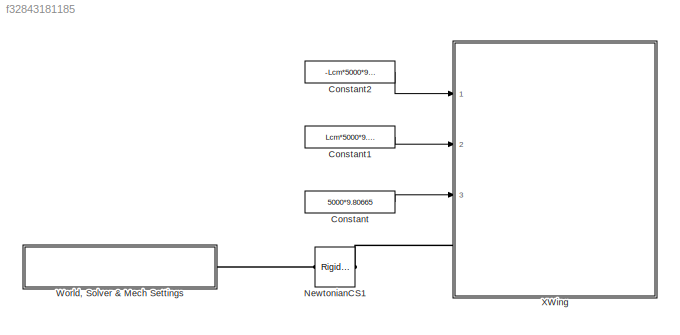
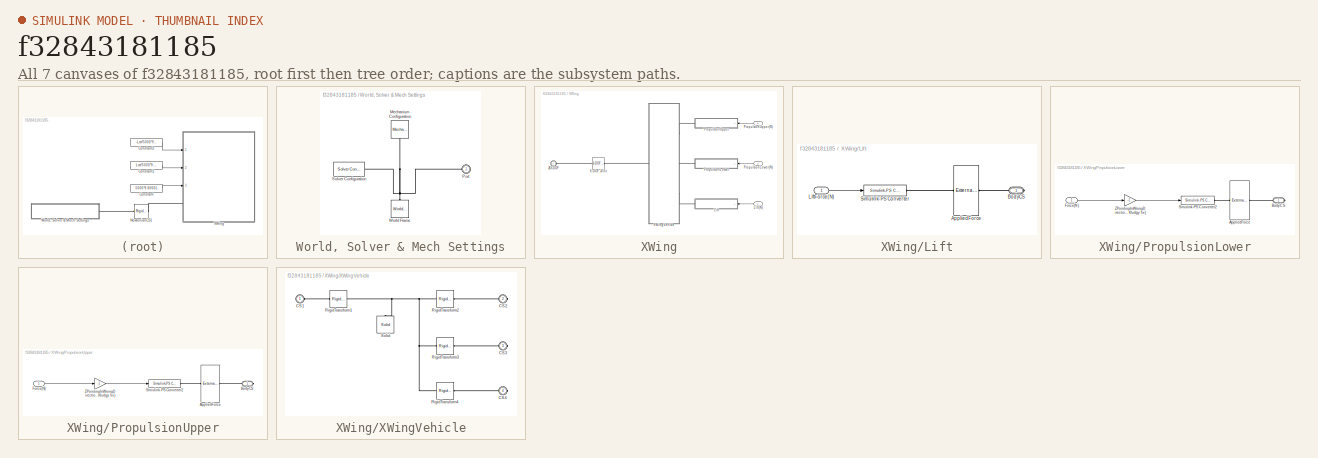
[diagram: thumbnail index - all 7 canvases of the model, root first then tree order]
MODEL slx_f32843181185
KIND model
CONFIG AbsTol = 1e-5
CONFIG EnableMultiTasking = off
CONFIG FixedStep = auto
CONFIG MaxStep = auto
CONFIG MinStep = auto
CONFIG PostLoadFcn = Lcm = 3.2;
CONFIG RelTol = 1e-5
CONFIG SampleTimeConstraint = Unconstrained
CONFIG Solver = VariableStepAuto
CONFIG SolverName = VariableStepAuto
CONFIG StartTime = 0.0
CONFIG StopTime = 10.0
BLOCK [Constant] Constant
  Value = 5000*9.80665
BLOCK [Constant] Constant1
  Value = Lcm*5000*9.80665
BLOCK [Constant] Constant2
  Value = -Lcm*5000*9.80665
BLOCK [Reference] NewtonianCS1  REF=sm_lib/Frames and
Transforms/Rigid
Transform
  Ports = [0, 0, 0, 0, 0, 1, 1]
  SourceBlock = sm_lib/Frames and\nTransforms/Rigid\nTransform
  SourceProductBaseCode = MS
  SourceProductName = Simscape Multibody
  SourceType = Rigid\nTransform
BLOCK [SubSystem] World, Solver & Mech Settings
  Ports = [0, 0, 0, 0, 0, 0, 1]
  RequestExecContextInheritance = off
BLOCK [Reference] World, Solver & Mech Settings/Mechanism Configuration  REF=sm_lib/Utilities/Mechanism
Configuration
  Ports = [0, 0, 0, 0, 0, 0, 1]
  SourceBlock = sm_lib/Utilities/Mechanism\nConfiguration
  SourceProductBaseCode = MS
  SourceProductName = Simscape Multibody
  SourceType = Mechanism\nConfiguration
BLOCK [PMIOPort] World, Solver & Mech Settings/Port
  Side = Right
BLOCK [Reference] World, Solver & Mech Settings/Solver Configuration  REF=nesl_utility/Solver
Configuration
  Ports = [0, 0, 0, 0, 0, 0, 1]
  SourceBlock = nesl_utility/Solver\nConfiguration
  SourceProductBaseCode = SS
  SourceProductName = Simscape
  SourceType = Solver\nConfiguration
BLOCK [Reference] World, Solver & Mech Settings/World Frame  REF=sm_lib/Frames and
Transforms/World Frame
  Ports = [0, 0, 0, 0, 0, 0, 1]
  SourceBlock = sm_lib/Frames and\nTransforms/World Frame
  SourceProductBaseCode = MS
  SourceProductName = Simscape Multibody
  SourceType = World Frame
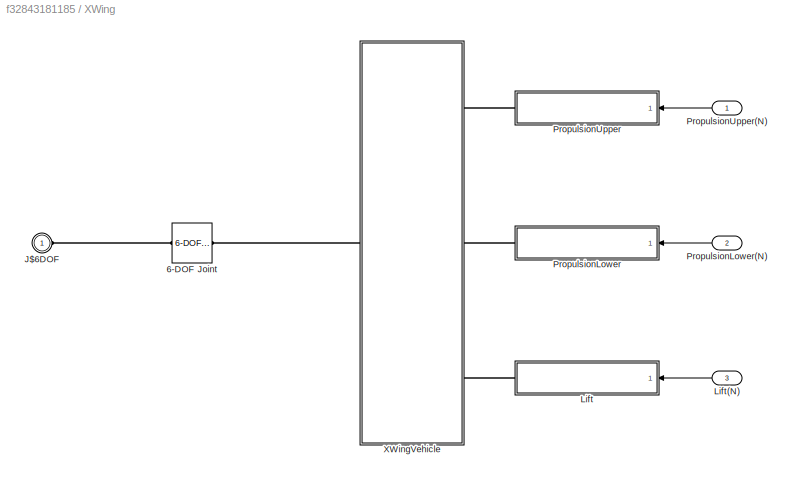
BLOCK [SubSystem] XWing
  Ports = [3, 0, 0, 0, 0, 1]
  RequestExecContextInheritance = off
  Tag = Force/Torque
BLOCK [Reference] XWing/6-DOF Joint  REF=sm_lib/Joints/6-DOF Joint
  Ports = [0, 0, 0, 0, 0, 1, 1]
  SourceBlock = sm_lib/Joints/6-DOF Joint
  SourceProductBaseCode = MS
  SourceProductName = Simscape Multibody
  SourceType = 6-DOF Joint
BLOCK [PMIOPort] XWing/J$6DOF
  Side = Left
BLOCK [SubSystem] XWing/Lift
  Ports = [1, 0, 0, 0, 0, 0, 1]
  RequestExecContextInheritance = off
BLOCK [Inport] XWing/Lift(N)
  IconDisplay = Port number
  Port = 3
BLOCK [Reference] XWing/Lift/AppliedForce  REF=sm_lib/Forces and
Torques/External Force
and Torque
  Ports = [0, 0, 0, 0, 0, 1, 1]
  SourceBlock = sm_lib/Forces and\nTorques/External Force\nand Torque
  SourceProductBaseCode = MS
  SourceProductName = Simscape Multibody
  SourceType = External Force\nand Torque
BLOCK [PMIOPort] XWing/Lift/BodyCS
  Side = Right
BLOCK [Inport] XWing/Lift/LiftForce(N)
  IconDisplay = Port number
BLOCK [Reference] XWing/Lift/Simulink-PS Converter  REF=nesl_utility/Simulink-PS
Converter
  Ports = [1, 0, 0, 0, 0, 0, 1]
  SourceBlock = nesl_utility/Simulink-PS\nConverter
  SourceProductBaseCode = SS
  SourceProductName = Simscape
  SourceType = Simulink-PS\nConverter
BLOCK [SubSystem] XWing/PropulsionLower
  Ports = [1, 0, 0, 0, 0, 0, 1]
  RequestExecContextInheritance = off
BLOCK [Inport] XWing/PropulsionLower(N)
  IconDisplay = Port number
  Port = 2
BLOCK [Reference] XWing/PropulsionLower/AppliedForce  REF=sm_lib/Forces and
Torques/External Force
and Torque
  Ports = [0, 0, 0, 0, 0, 1, 1]
  SourceBlock = sm_lib/Forces and\nTorques/External Force\nand Torque
  SourceProductBaseCode = MS
  SourceProductName = Simscape Multibody
  SourceType = External Force\nand Torque
BLOCK [PMIOPort] XWing/PropulsionLower/BodyCS
  Side = Right
BLOCK [Inport] XWing/PropulsionLower/Force(N)
  IconDisplay = Port number
BLOCK [Reference] XWing/PropulsionLower/Simulink-PS Converter2  REF=nesl_utility/Simulink-PS
Converter
  Ports = [1, 0, 0, 0, 0, 0, 1]
  SourceBlock = nesl_utility/Simulink-PS\nConverter
  SourceProductBaseCode = SS
  SourceProductName = Simscape
  SourceType = Simulink-PS\nConverter
BLOCK [Gain] XWing/PropulsionLower/ZPointingInWrongDirectionOnFrame (This is a Kludgy fix)
  Gain = -1
  OutDataTypeStr = Inherit: Inherit via internal rule
  ParamDataTypeStr = Inherit: Inherit via internal rule
  SaturateOnIntegerOverflow = off
BLOCK [SubSystem] XWing/PropulsionUpper
  Ports = [1, 0, 0, 0, 0, 0, 1]
  RequestExecContextInheritance = off
BLOCK [Inport] XWing/PropulsionUpper(N)
  IconDisplay = Port number
BLOCK [Reference] XWing/PropulsionUpper/AppliedForce  REF=sm_lib/Forces and
Torques/External Force
and Torque
  Ports = [0, 0, 0, 0, 0, 1, 1]
  SourceBlock = sm_lib/Forces and\nTorques/External Force\nand Torque
  SourceProductBaseCode = MS
  SourceProductName = Simscape Multibody
  SourceType = External Force\nand Torque
BLOCK [PMIOPort] XWing/PropulsionUpper/BodyCS
  Side = Right
BLOCK [Inport] XWing/PropulsionUpper/Force(N)
  IconDisplay = Port number
BLOCK [Reference] XWing/PropulsionUpper/Simulink-PS Converter2  REF=nesl_utility/Simulink-PS
Converter
  Ports = [1, 0, 0, 0, 0, 0, 1]
  SourceBlock = nesl_utility/Simulink-PS\nConverter
  SourceProductBaseCode = SS
  SourceProductName = Simscape
  SourceType = Simulink-PS\nConverter
BLOCK [Gain] XWing/PropulsionUpper/ZPointingInWrongDirectionOnFrame (This is a Kludgy fix)
  Gain = -1
  OutDataTypeStr = Inherit: Inherit via internal rule
  ParamDataTypeStr = Inherit: Inherit via internal rule
  SaturateOnIntegerOverflow = off
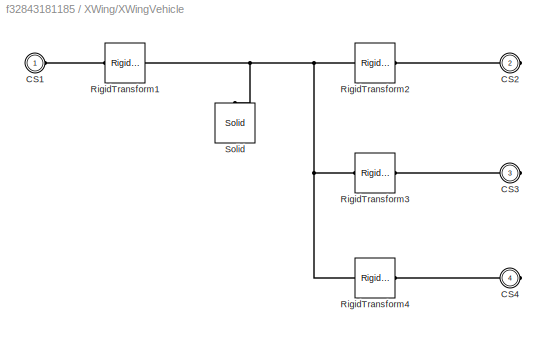
BLOCK [SubSystem] XWing/XWingVehicle
  Ports = [0, 0, 0, 0, 0, 1, 3]
  RequestExecContextInheritance = off
BLOCK [PMIOPort] XWing/XWingVehicle/CS1 
  Side = Left
BLOCK [PMIOPort] XWing/XWingVehicle/CS2
  Port = 2
  Side = Right
BLOCK [PMIOPort] XWing/XWingVehicle/CS3
  Port = 3
  Side = Right
BLOCK [PMIOPort] XWing/XWingVehicle/CS4
  Port = 4
  Side = Right
BLOCK [Reference] XWing/XWingVehicle/RigidTransform1  REF=sm_lib/Frames and
Transforms/Rigid
Transform
  Ports = [0, 0, 0, 0, 0, 1, 1]
  SourceBlock = sm_lib/Frames and\nTransforms/Rigid\nTransform
  SourceProductBaseCode = MS
  SourceProductName = Simscape Multibody
  SourceType = Rigid\nTransform
BLOCK [Reference] XWing/XWingVehicle/RigidTransform2  REF=sm_lib/Frames and
Transforms/Rigid
Transform
  Ports = [0, 0, 0, 0, 0, 1, 1]
  SourceBlock = sm_lib/Frames and\nTransforms/Rigid\nTransform
  SourceProductBaseCode = MS
  SourceProductName = Simscape Multibody
  SourceType = Rigid\nTransform
BLOCK [Reference] XWing/XWingVehicle/RigidTransform3  REF=sm_lib/Frames and
Transforms/Rigid
Transform
  Ports = [0, 0, 0, 0, 0, 1, 1]
  SourceBlock = sm_lib/Frames and\nTransforms/Rigid\nTransform
  SourceProductBaseCode = MS
  SourceProductName = Simscape Multibody
  SourceType = Rigid\nTransform
BLOCK [Reference] XWing/XWingVehicle/RigidTransform4  REF=sm_lib/Frames and
Transforms/Rigid
Transform
  Ports = [0, 0, 0, 0, 0, 1, 1]
  SourceBlock = sm_lib/Frames and\nTransforms/Rigid\nTransform
  SourceProductBaseCode = MS
  SourceProductName = Simscape Multibody
  SourceType = Rigid\nTransform
BLOCK [Reference] XWing/XWingVehicle/Solid  REF=sm_lib/Body Elements/Solid
  Ports = [0, 0, 0, 0, 0, 0, 1]
  SourceBlock = sm_lib/Body Elements/Solid
  SourceProductBaseCode = MS
  SourceProductName = Simscape Multibody
  SourceType = Solid
LINE Constant1:1 -> XWing:2
LINE Constant2:1 -> XWing:1
LINE Constant:1 -> XWing:3
LINE XWing/Lift(N):1 -> XWing/Lift:1
LINE XWing/Lift/LiftForce(N):1 -> XWing/Lift/Simulink-PS Converter:1
LINE XWing/PropulsionLower(N):1 -> XWing/PropulsionLower:1
LINE XWing/PropulsionLower/Force(N):1 -> XWing/PropulsionLower/ZPointingInWrongDirectionOnFrame (This is a Kludgy fix):1
LINE XWing/PropulsionLower/ZPointingInWrongDirectionOnFrame (This is a Kludgy fix):1 -> XWing/PropulsionLower/Simulink-PS Converter2:1
LINE XWing/PropulsionUpper(N):1 -> XWing/PropulsionUpper:1
LINE XWing/PropulsionUpper/Force(N):1 -> XWing/PropulsionUpper/ZPointingInWrongDirectionOnFrame (This is a Kludgy fix):1
LINE XWing/PropulsionUpper/ZPointingInWrongDirectionOnFrame (This is a Kludgy fix):1 -> XWing/PropulsionUpper/Simulink-PS Converter2:1
PLINE NewtonianCS1:LConn1 -- World, Solver & Mech Settings:RConn1
PLINE NewtonianCS1:RConn1 -- XWing:LConn1
PNET net1: World, Solver & Mech Settings/Mechanism Configuration:RConn1 -- World, Solver & Mech Settings/Port:RConn1 -- World, Solver & Mech Settings/Solver Configuration:RConn1 -- World, Solver & Mech Settings/World Frame:RConn1
PLINE XWing/6-DOF Joint:LConn1 -- XWing/J$6DOF:RConn1
PLINE XWing/6-DOF Joint:RConn1 -- XWing/XWingVehicle:LConn1
PLINE XWing/Lift/AppliedForce:LConn1 -- XWing/Lift/Simulink-PS Converter:RConn1
PLINE XWing/Lift/AppliedForce:RConn1 -- XWing/Lift/BodyCS:RConn1
PLINE XWing/Lift:RConn1 -- XWing/XWingVehicle:RConn3
PLINE XWing/PropulsionLower/AppliedForce:LConn1 -- XWing/PropulsionLower/Simulink-PS Converter2:RConn1
PLINE XWing/PropulsionLower/AppliedForce:RConn1 -- XWing/PropulsionLower/BodyCS:RConn1
PLINE XWing/PropulsionLower:RConn1 -- XWing/XWingVehicle:RConn2
PLINE XWing/PropulsionUpper/AppliedForce:LConn1 -- XWing/PropulsionUpper/Simulink-PS Converter2:RConn1
PLINE XWing/PropulsionUpper/AppliedForce:RConn1 -- XWing/PropulsionUpper/BodyCS:RConn1
PLINE XWing/PropulsionUpper:RConn1 -- XWing/XWingVehicle:RConn1
PLINE XWing/XWingVehicle/CS1 :RConn1 -- XWing/XWingVehicle/RigidTransform1:LConn1
PLINE XWing/XWingVehicle/CS2:RConn1 -- XWing/XWingVehicle/RigidTransform2:RConn1
PLINE XWing/XWingVehicle/CS3:RConn1 -- XWing/XWingVehicle/RigidTransform3:RConn1
PLINE XWing/XWingVehicle/CS4:RConn1 -- XWing/XWingVehicle/RigidTransform4:RConn1
PNET net2: XWing/XWingVehicle/RigidTransform1:RConn1 -- XWing/XWingVehicle/RigidTransform2:LConn1 -- XWing/XWingVehicle/RigidTransform3:LConn1 -- XWing/XWingVehicle/RigidTransform4:LConn1 -- XWing/XWingVehicle/Solid:RConn1
note: PNET lines group multi-terminal physical nets as a canonical sorted terminal list (undirected conserving connections); 2-terminal nets keep the pairwise PLINE form
